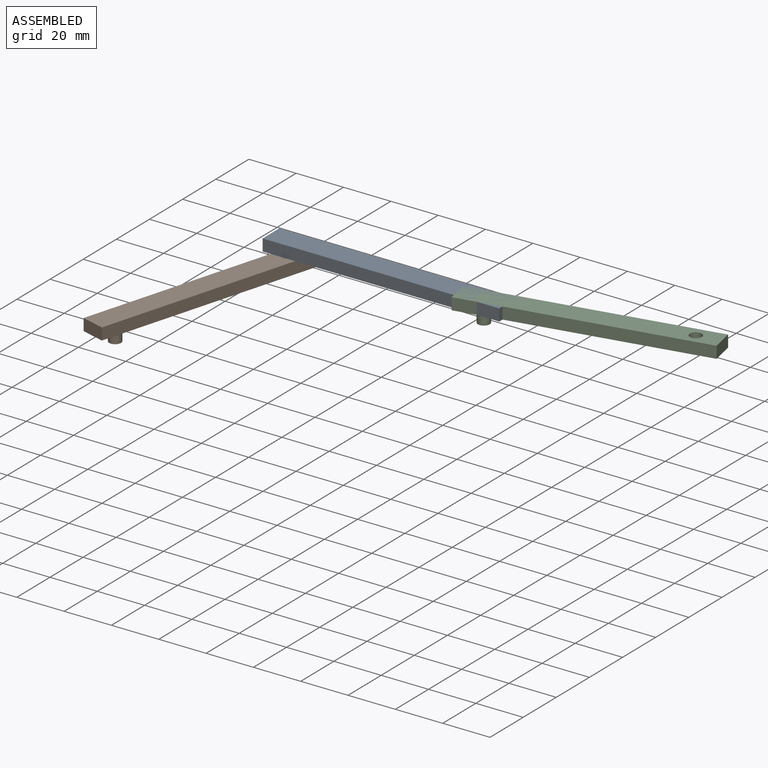
[diagram: assembled view]
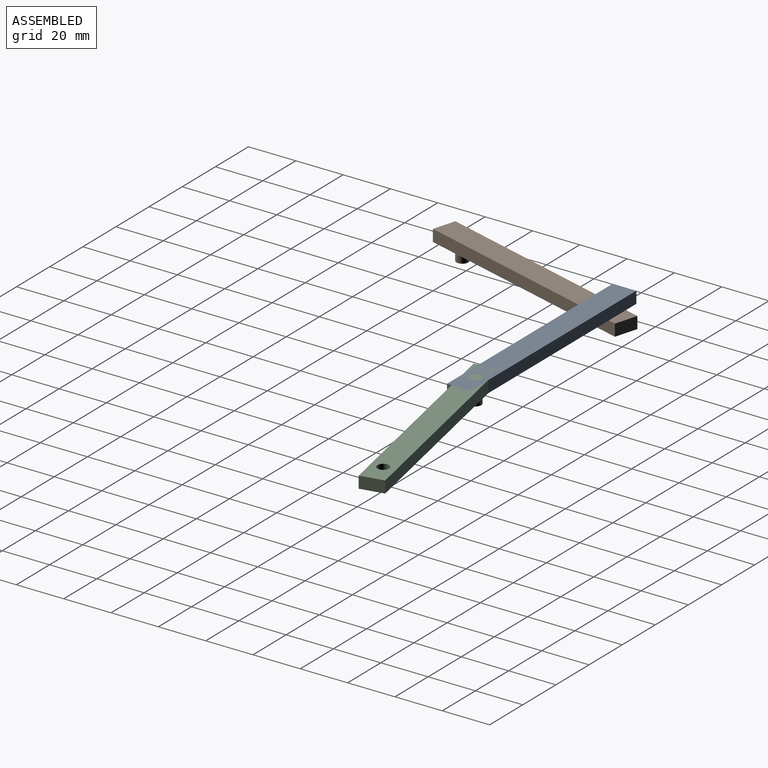
[diagram: assembled view, second angle]
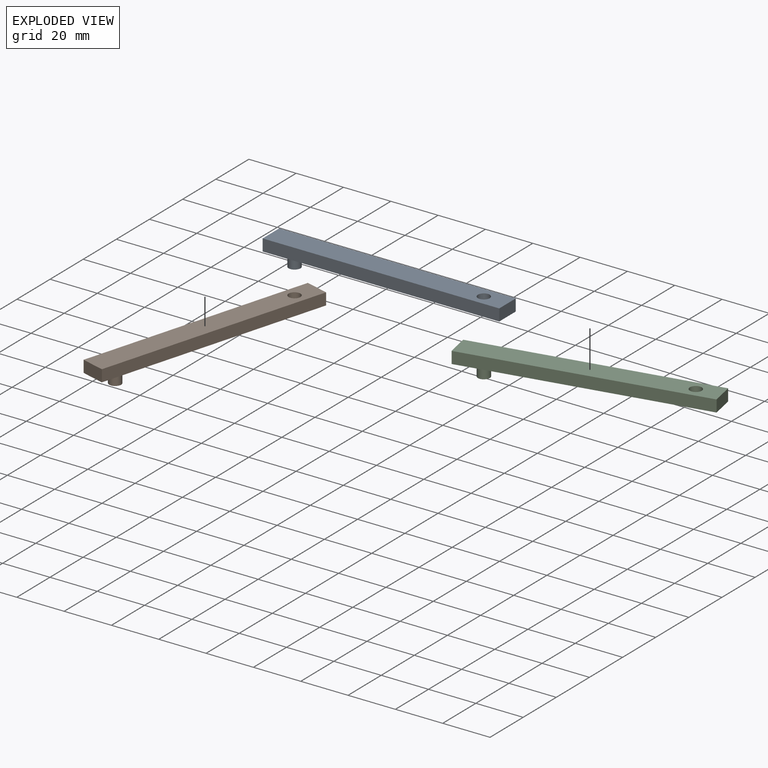
[diagram: exploded view]
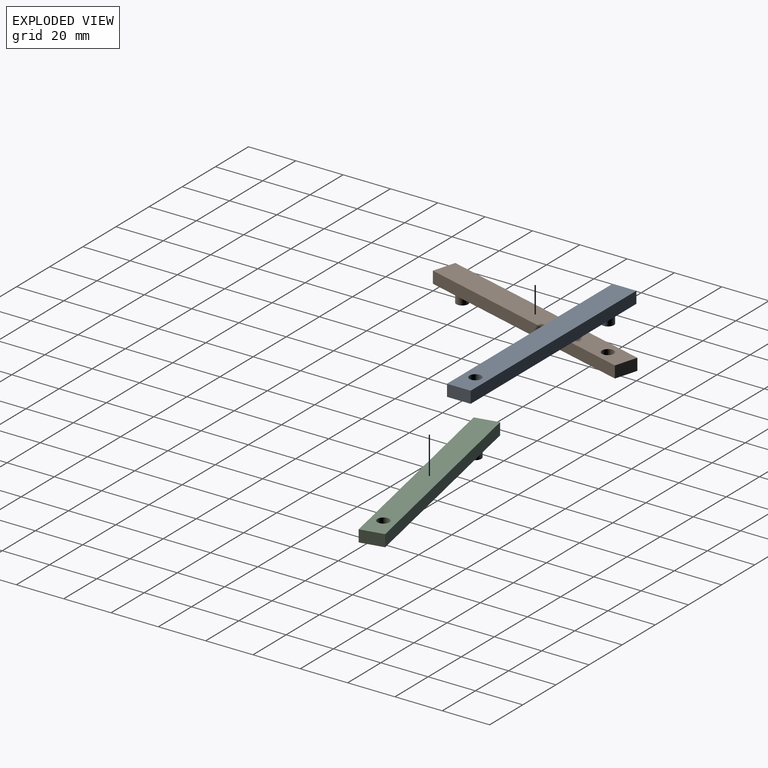
[diagram: exploded view, second angle]
ASSEMBLY  parts=3 mates=2
PART A: 9 faces, bbox 100x10x10 mm
  f0: plane 10x5mm, normal (-1,0,0), area 50mm2, adj f1,f3,f5,f6
  f1: plane 100x5mm, normal (0,-1,0), area 500mm2, adj f0,f2,f5,f6
  f2: plane 10x5mm, normal (1,0,0), area 50mm2, adj f1,f3,f5,f6
  f3: plane 100x5mm, normal (0,1,0), area 500mm2, adj f0,f2,f5,f6
  f4: cylinder r=2.5mm len=5mm, axis (0,0,-1), area 78.5mm2, adj f5,f6
  f5: plane 100x10mm, normal (0,0,1), area 980.4mm2, adj f0,f1,f2,f3,f4
  f6: plane 100x10mm, normal (0,0,-1), area 960.7mm2, adj f0,f1,f2,f3,f4,f7
  f7: cylinder r=2.5mm len=5mm, axis (0,0,1), area 78.5mm2, adj f6,f8
  f8: plane 5x5mm, normal (0,0,-1), area 19.6mm2, adj f7
PART B: same geometry as A
PART C: same geometry as A
PLACE A t=(-8.67,17.9,-1.45)mm fixed
PLACE B rot(axis=(0,0,1),74.1deg) t=(-18.58,-65.02,-6.45)mm
PLACE C rot(axis=(0,0,1),11.5deg) t=(72.53,16,-1.45)mm
MATE revolute B.f4 <-> A.f7  axis (0,0,-1) through (1.33,22.9,-6.45)mm
MATE revolute C.f7 <-> A.f4  axis (0,0,1) through (81.33,22.9,-1.45)mm
